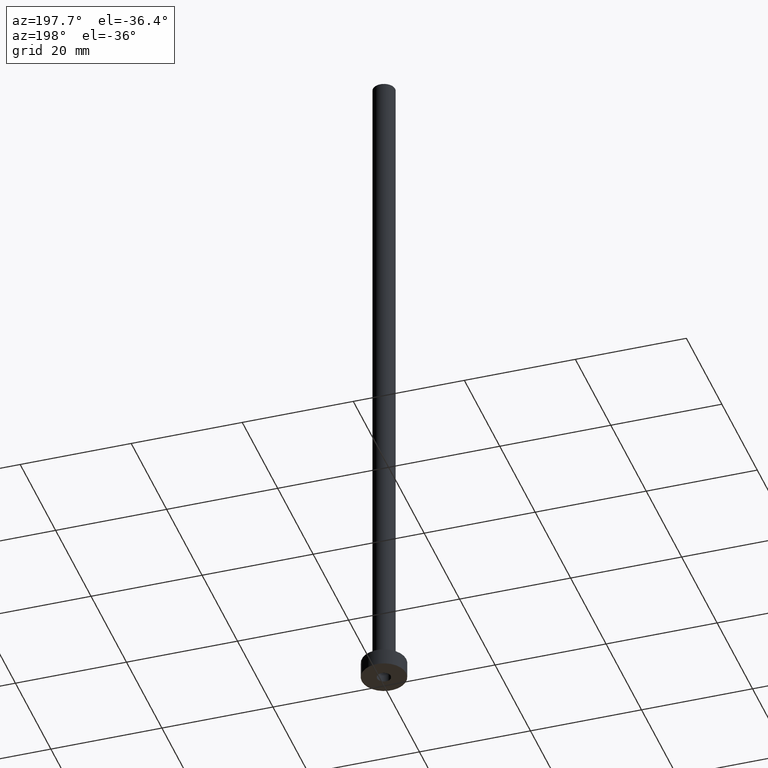
[diagram: clean part render]
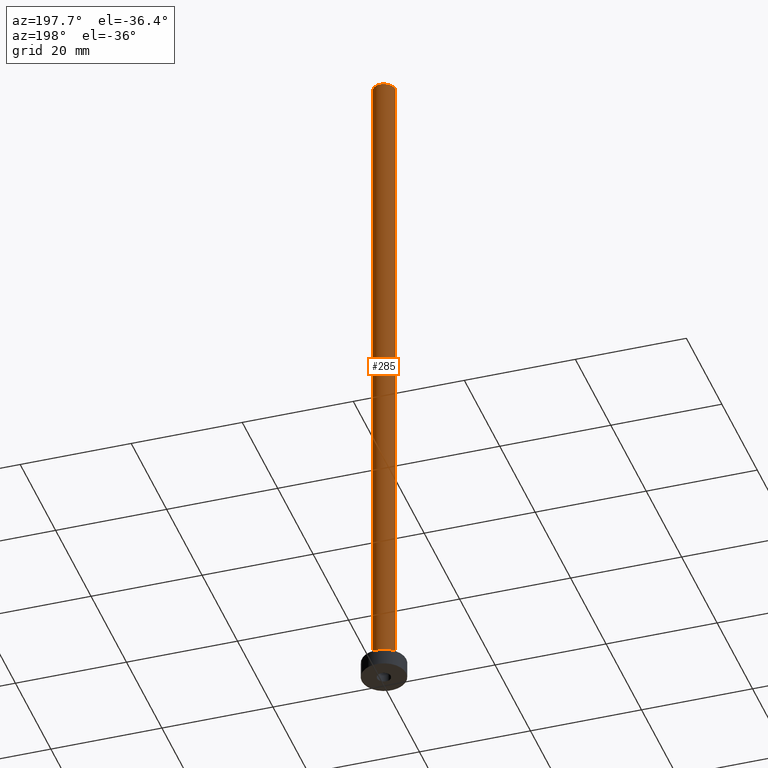
[diagram: same view with one face highlighted and labeled with its STEP entity id]
A machine part, auxiliary view. The second image highlights one B-rep face of the part: STEP entity #285.
In plain terms, the highlighted cylindrical surface (edge-blend (fillet) strip) has radius 2 mm, axis along (-0, -0, -1).
Its self-contained STEP definition (entity closure, byte-faithful):
#10 = AXIS2_PLACEMENT_3D ( 'NONE', #328, #150, #56 ) ;
#16 = EDGE_CURVE ( 'NONE', #421, #260, #115, .T. ) ;
#21 = LINE ( 'NONE', #361, #49 ) ;
#49 = VECTOR ( 'NONE', #296, 1000.000000000000000 ) ;
#56 = DIRECTION ( 'NONE',  ( 1.000000000000000000, 0.000000000000000000, 0.000000000000000000 ) ) ;
#83 = LINE ( 'NONE', #156, #417 ) ;
#85 = CARTESIAN_POINT ( 'NONE',  ( 0.000000000000000000, 0.000000000000000000, 125.0000000000000000 ) ) ;
#88 = FACE_OUTER_BOUND ( 'NONE', #195, .T. ) ;
#98 = CIRCLE ( 'NONE', #10, 2.000000000000000000 ) ;
#115 = CIRCLE ( 'NONE', #188, 2.000000000000000000 ) ;
#150 = DIRECTION ( 'NONE',  ( 0.000000000000000000, 0.000000000000000000, 1.000000000000000000 ) ) ;
#156 = CARTESIAN_POINT ( 'NONE',  ( -2.000000000000000000, 0.000000000000000000, 125.0000000000000000 ) ) ;
#171 = CARTESIAN_POINT ( 'NONE',  ( 2.000000000000000000, 2.449293598294705921E-16, 125.0000000000000000 ) ) ;
#188 = AXIS2_PLACEMENT_3D ( 'NONE', #303, #310, #385 ) ;
#193 = ORIENTED_EDGE ( 'NONE', *, *, #16, .T. ) ;
#195 = EDGE_LOOP ( 'NONE', ( #292, #297, #193, #412 ) ) ;
#222 = CYLINDRICAL_SURFACE ( 'NONE', #436, 2.000000000000000000 ) ;
#226 = DIRECTION ( 'NONE',  ( -0.000000000000000000, -0.000000000000000000, -1.000000000000000000 ) ) ;
#227 = VERTEX_POINT ( 'NONE', #171 ) ;
#260 = VERTEX_POINT ( 'NONE', #371 ) ;
#285 = ADVANCED_FACE ( 'NONE', ( #88 ), #222, .T. ) ;
#289 = EDGE_CURVE ( 'NONE', #227, #421, #21, .T. ) ;
#292 = ORIENTED_EDGE ( 'NONE', *, *, #386, .F. ) ;
#296 = DIRECTION ( 'NONE',  ( -0.000000000000000000, -0.000000000000000000, -1.000000000000000000 ) ) ;
#297 = ORIENTED_EDGE ( 'NONE', *, *, #289, .T. ) ;
#303 = CARTESIAN_POINT ( 'NONE',  ( 0.000000000000000000, 0.000000000000000000, 3.299999999999997158 ) ) ;
#310 = DIRECTION ( 'NONE',  ( 0.000000000000000000, 0.000000000000000000, 1.000000000000000000 ) ) ;
#328 = CARTESIAN_POINT ( 'NONE',  ( 0.000000000000000000, 0.000000000000000000, 125.0000000000000000 ) ) ;
#361 = CARTESIAN_POINT ( 'NONE',  ( 2.000000000000000000, 2.449293598294705921E-16, 125.0000000000000000 ) ) ;
#368 = EDGE_CURVE ( 'NONE', #407, #260, #83, .T. ) ;
#369 = DIRECTION ( 'NONE',  ( -1.000000000000000000, 0.000000000000000000, 0.000000000000000000 ) ) ;
#371 = CARTESIAN_POINT ( 'NONE',  ( -2.000000000000000000, 0.000000000000000000, 3.299999999999997158 ) ) ;
#385 = DIRECTION ( 'NONE',  ( 1.000000000000000000, 0.000000000000000000, 0.000000000000000000 ) ) ;
#386 = EDGE_CURVE ( 'NONE', #227, #407, #98, .T. ) ;
#407 = VERTEX_POINT ( 'NONE', #450 ) ;
#412 = ORIENTED_EDGE ( 'NONE', *, *, #368, .F. ) ;
#413 = CARTESIAN_POINT ( 'NONE',  ( 2.000000000000000000, 2.449293598294705921E-16, 3.299999999999997158 ) ) ;
#417 = VECTOR ( 'NONE', #439, 1000.000000000000000 ) ;
#421 = VERTEX_POINT ( 'NONE', #413 ) ;
#436 = AXIS2_PLACEMENT_3D ( 'NONE', #85, #226, #369 ) ;
#439 = DIRECTION ( 'NONE',  ( -0.000000000000000000, -0.000000000000000000, -1.000000000000000000 ) ) ;
#450 = CARTESIAN_POINT ( 'NONE',  ( -2.000000000000000000, 0.000000000000000000, 125.0000000000000000 ) ) ;